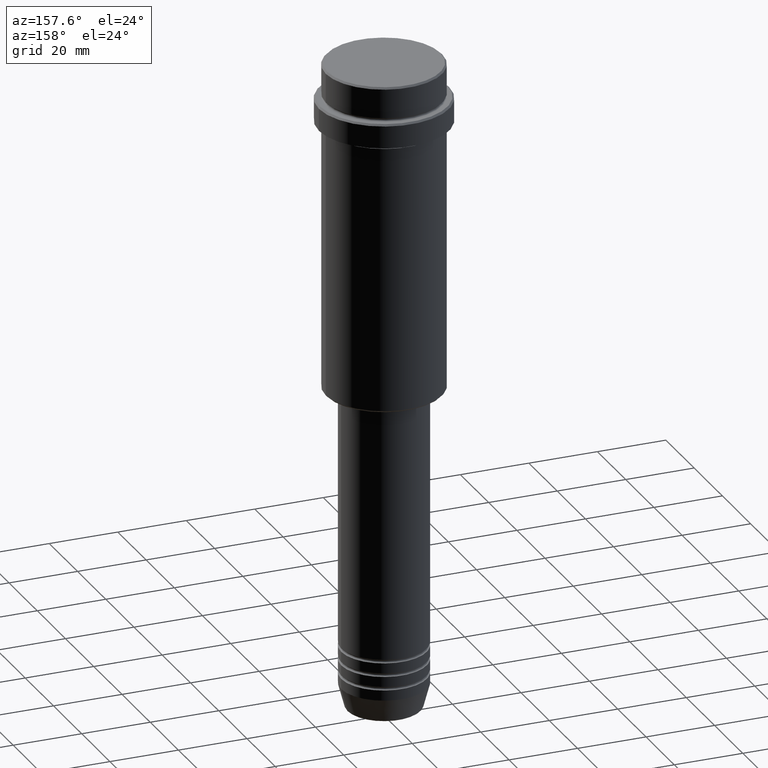
[diagram: clean part render]
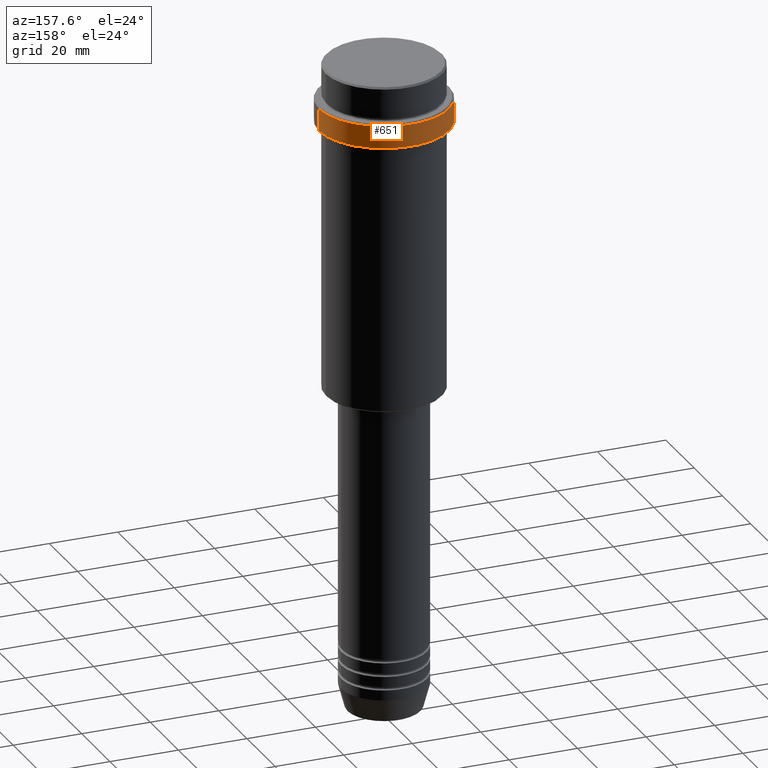
[diagram: same view with one face highlighted and labeled with its STEP entity id]
A machine part, auxiliary view. The second image highlights one B-rep face of the part: STEP entity #651.
In plain terms, the highlighted cylindrical surface (partial cylindrical patch) has radius 19 mm, axis along (-0, -0, 1).
Its self-contained STEP definition (entity closure, byte-faithful):
#6 = DIRECTION ( 'NONE',  ( -0.000000000000000000, -0.000000000000000000, 1.000000000000000000 ) ) ;
#60 = DIRECTION ( 'NONE',  ( -0.000000000000000000, -0.000000000000000000, 1.000000000000000000 ) ) ;
#134 = CARTESIAN_POINT ( 'NONE',  ( -18.99999999999997868, 2.326828918379968604E-15, 0.000000000000000000 ) ) ;
#229 = FACE_OUTER_BOUND ( 'NONE', #409, .T. ) ;
#240 = DIRECTION ( 'NONE',  ( -0.000000000000000000, -0.000000000000000000, 1.000000000000000000 ) ) ;
#288 = VERTEX_POINT ( 'NONE', #1338 ) ;
#353 = EDGE_CURVE ( 'NONE', #902, #692, #949, .T. ) ;
#381 = ORIENTED_EDGE ( 'NONE', *, *, #759, .T. ) ;
#409 = EDGE_LOOP ( 'NONE', ( #672, #381, #508, #502 ) ) ;
#444 = CARTESIAN_POINT ( 'NONE',  ( 0.000000000000000000, 0.000000000000000000, -17.00000000000000000 ) ) ;
#480 = EDGE_CURVE ( 'NONE', #895, #692, #691, .T. ) ;
#499 = EDGE_CURVE ( 'NONE', #895, #288, #857, .T. ) ;
#502 = ORIENTED_EDGE ( 'NONE', *, *, #480, .F. ) ;
#508 = ORIENTED_EDGE ( 'NONE', *, *, #353, .T. ) ;
#578 = LINE ( 'NONE', #134, #1290 ) ;
#579 = AXIS2_PLACEMENT_3D ( 'NONE', #1162, #614, #609 ) ;
#609 = DIRECTION ( 'NONE',  ( 1.000000000000000000, 0.000000000000000000, 0.000000000000000000 ) ) ;
#614 = DIRECTION ( 'NONE',  ( 0.000000000000000000, 0.000000000000000000, -1.000000000000000000 ) ) ;
#651 = ADVANCED_FACE ( 'NONE', ( #229 ), #1092, .T. ) ;
#672 = ORIENTED_EDGE ( 'NONE', *, *, #499, .T. ) ;
#691 = LINE ( 'NONE', #1000, #974 ) ;
#692 = VERTEX_POINT ( 'NONE', #1321 ) ;
#744 = CARTESIAN_POINT ( 'NONE',  ( 18.99999999999997868, 0.000000000000000000, -17.00000000000000000 ) ) ;
#759 = EDGE_CURVE ( 'NONE', #288, #902, #578, .T. ) ;
#768 = AXIS2_PLACEMENT_3D ( 'NONE', #1015, #6, #1209 ) ;
#857 = CIRCLE ( 'NONE', #1250, 18.99999999999997868 ) ;
#895 = VERTEX_POINT ( 'NONE', #744 ) ;
#902 = VERTEX_POINT ( 'NONE', #1381 ) ;
#949 = CIRCLE ( 'NONE', #579, 18.99999999999997868 ) ;
#974 = VECTOR ( 'NONE', #240, 1000.000000000000000 ) ;
#1000 = CARTESIAN_POINT ( 'NONE',  ( 18.99999999999997868, 0.000000000000000000, 0.000000000000000000 ) ) ;
#1015 = CARTESIAN_POINT ( 'NONE',  ( 0.000000000000000000, 0.000000000000000000, 0.000000000000000000 ) ) ;
#1017 = DIRECTION ( 'NONE',  ( -0.000000000000000000, -0.000000000000000000, 1.000000000000000000 ) ) ;
#1092 = CYLINDRICAL_SURFACE ( 'NONE', #768, 18.99999999999997868 ) ;
#1162 = CARTESIAN_POINT ( 'NONE',  ( 0.000000000000000000, 0.000000000000000000, -10.49999999999998934 ) ) ;
#1209 = DIRECTION ( 'NONE',  ( 1.000000000000000000, 0.000000000000000000, 0.000000000000000000 ) ) ;
#1224 = DIRECTION ( 'NONE',  ( 1.000000000000000000, 0.000000000000000000, 0.000000000000000000 ) ) ;
#1250 = AXIS2_PLACEMENT_3D ( 'NONE', #444, #1017, #1224 ) ;
#1290 = VECTOR ( 'NONE', #60, 1000.000000000000000 ) ;
#1321 = CARTESIAN_POINT ( 'NONE',  ( 18.99999999999997868, 0.000000000000000000, -10.49999999999998934 ) ) ;
#1338 = CARTESIAN_POINT ( 'NONE',  ( -18.99999999999997868, 2.326828918379968604E-15, -17.00000000000000000 ) ) ;
#1381 = CARTESIAN_POINT ( 'NONE',  ( -18.99999999999997868, 2.326828918379968604E-15, -10.49999999999998934 ) ) ;